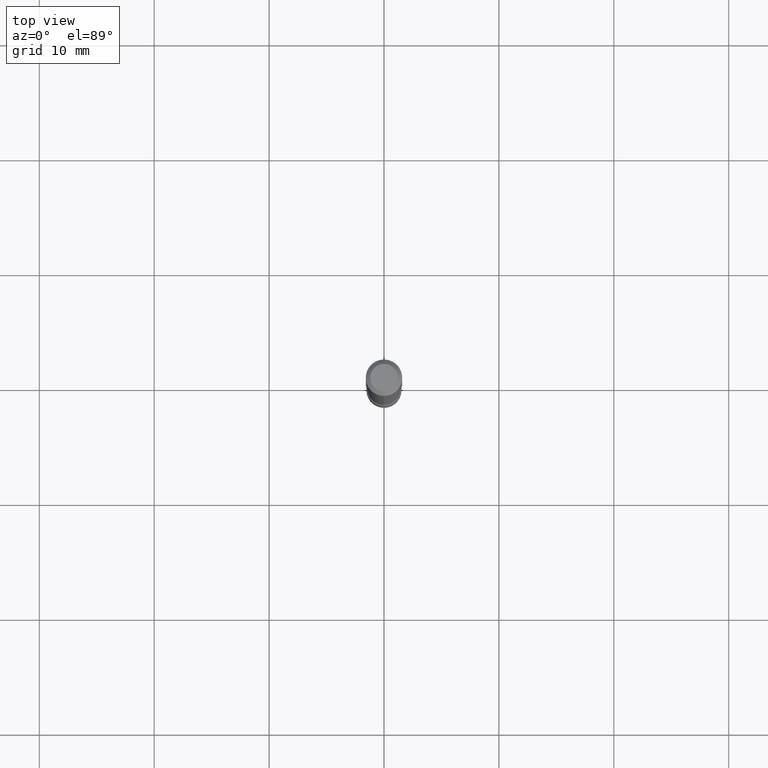
[diagram: clean part render]
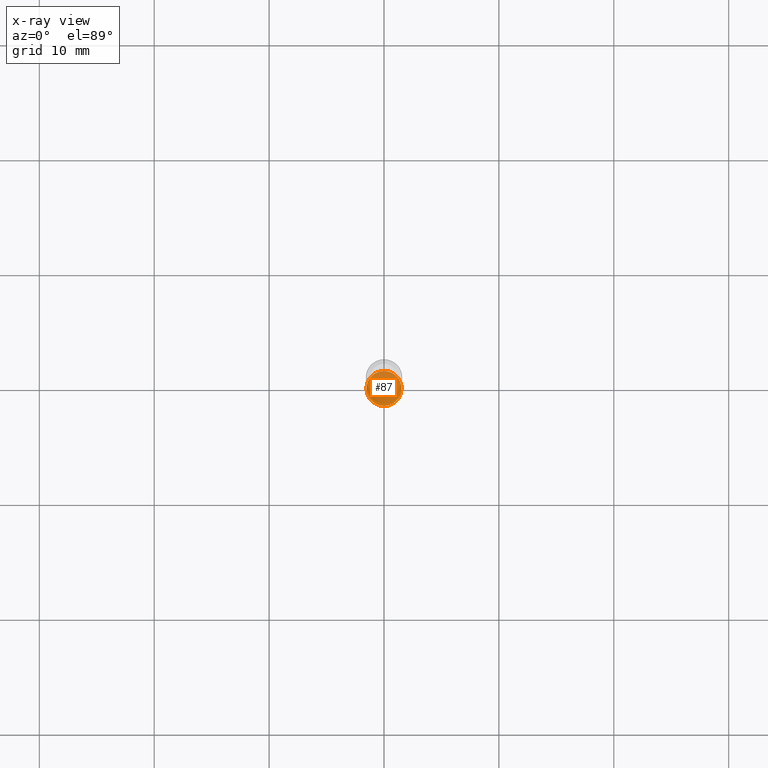
[diagram: x-ray — body ghosted, one internal face saturated and labeled with its STEP entity id]
A machine part, top view, then the same camera in x-ray: the body is ghosted and one INTERNAL B-rep face — a face not visible from any outside direction — is saturated and labeled: STEP entity #87.
In plain terms, the highlighted planar face has unit normal (-0, 0, 1).
Its self-contained STEP definition (entity closure, byte-faithful):
#21 = CARTESIAN_POINT ( 'NONE',  ( -4.189777606611237800E-16, -0.06000000000000750566, -2.139999999999999680 ) ) ;
#32 = EDGE_CURVE ( 'NONE', #489, #428, #461, .T. ) ;
#57 = DIRECTION ( 'NONE',  ( -2.445444235938896917E-29, 3.491516524834212024E-15, 1.000000000000000000 ) ) ;
#64 = DIRECTION ( 'NONE',  ( -6.982962677686265922E-15, -1.000000000000000000, 4.553079989440439092E-15 ) ) ;
#69 = CIRCLE ( 'NONE', #425, 0.05999999999999999778 ) ;
#87 = ADVANCED_FACE ( 'NONE', ( #99 ), #379, .F. ) ;
#89 = DIRECTION ( 'NONE',  ( -2.445444235938896917E-29, 3.491516524834212024E-15, 1.000000000000000000 ) ) ;
#99 = FACE_OUTER_BOUND ( 'NONE', #248, .T. ) ;
#125 = CARTESIAN_POINT ( 'NONE',  ( 5.233250664909240003E-29, -7.471845363145214624E-15, -2.140000000000000124 ) ) ;
#184 = CARTESIAN_POINT ( 'NONE',  ( 5.233250664909240003E-29, -7.471845363145214624E-15, -2.140000000000000124 ) ) ;
#200 = AXIS2_PLACEMENT_3D ( 'NONE', #258, #57, #216 ) ;
#215 = CARTESIAN_POINT ( 'NONE',  ( 4.263256414561126536E-16, 0.05999999999999256622, -2.140000000000000568 ) ) ;
#216 = DIRECTION ( 'NONE',  ( -6.982962677686265922E-15, -1.000000000000000000, 3.491516524834212024E-15 ) ) ;
#248 = EDGE_LOOP ( 'NONE', ( #449, #417 ) ) ;
#249 = DIRECTION ( 'NONE',  ( -6.982962677686265922E-15, -1.000000000000000000, 4.553079989440439092E-15 ) ) ;
#258 = CARTESIAN_POINT ( 'NONE',  ( 4.189777606612283041E-16, 0.05999999999999253153, -2.140000000000000568 ) ) ;
#270 = AXIS2_PLACEMENT_3D ( 'NONE', #184, #344, #64 ) ;
#344 = DIRECTION ( 'NONE',  ( -2.445444235938896917E-29, 3.491516524834212024E-15, 1.000000000000000000 ) ) ;
#379 = PLANE ( 'NONE',  #200 ) ;
#417 = ORIENTED_EDGE ( 'NONE', *, *, #424, .F. ) ;
#424 = EDGE_CURVE ( 'NONE', #428, #489, #69, .T. ) ;
#425 = AXIS2_PLACEMENT_3D ( 'NONE', #125, #89, #249 ) ;
#428 = VERTEX_POINT ( 'NONE', #215 ) ;
#449 = ORIENTED_EDGE ( 'NONE', *, *, #32, .F. ) ;
#461 = CIRCLE ( 'NONE', #270, 0.05999999999999999778 ) ;
#489 = VERTEX_POINT ( 'NONE', #21 ) ;